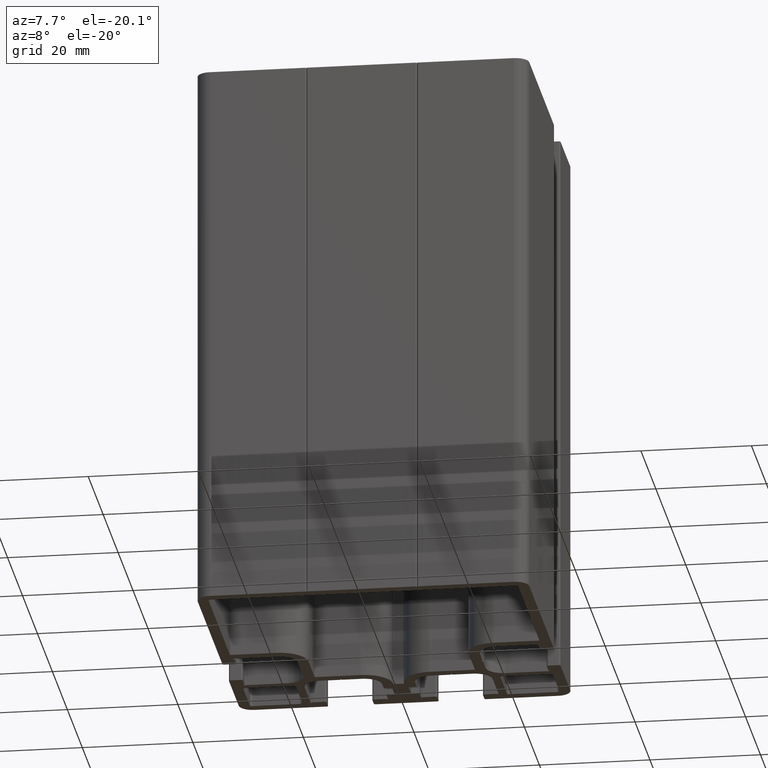
[diagram: clean part render]
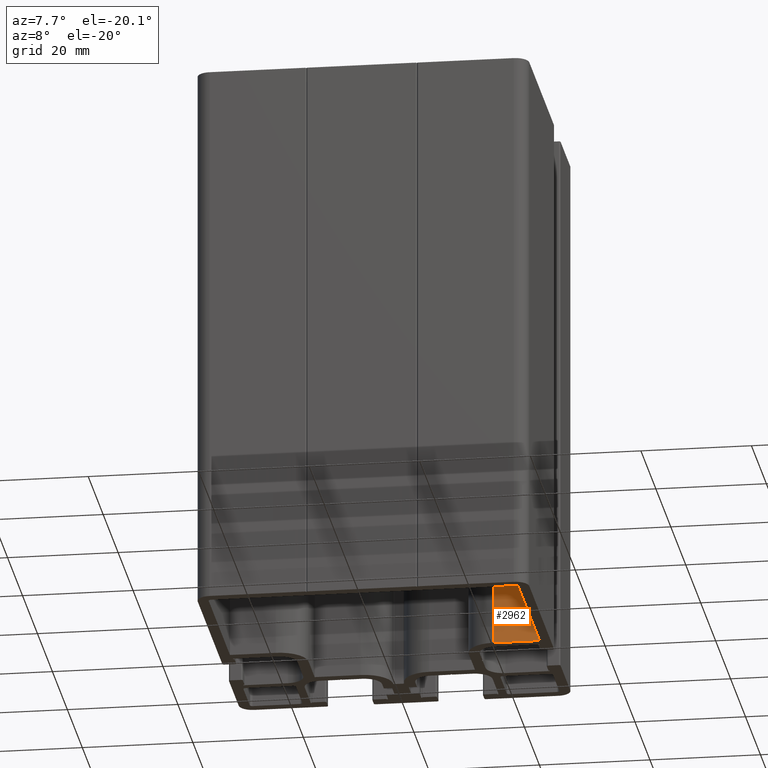
[diagram: same view with one face highlighted and labeled with its STEP entity id]
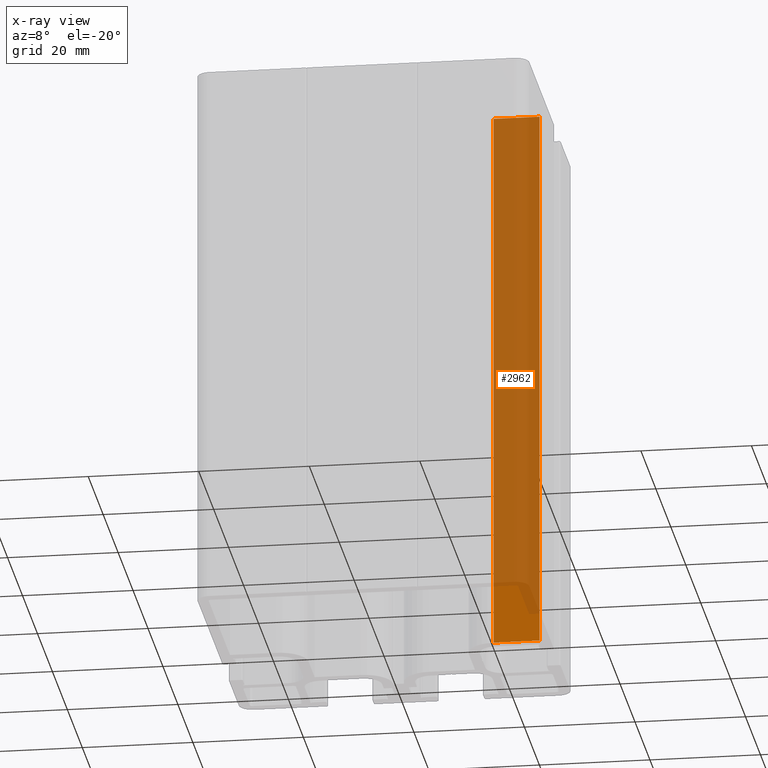
[diagram: x-ray of the same camera — body ghosted, the highlighted face saturated]
A machine part, auxiliary view. The second image highlights one B-rep face of the part: STEP entity #2962.
The next image is the same camera in x-ray: the body ghosted, the highlighted face saturated — about 91% of this face is hidden behind the body in this view.
In plain terms, the highlighted planar face has unit normal (0, 1, 0).
Its self-contained STEP definition (entity closure, byte-faithful):
#210=FACE_OUTER_BOUND('',#364,.T.);
#364=EDGE_LOOP('',(#1983,#1984,#1985,#1986));
#534=LINE('',#4325,#870);
#535=LINE('',#4329,#871);
#536=LINE('',#4331,#872);
#537=LINE('',#4332,#873);
#870=VECTOR('',#3436,100.);
#871=VECTOR('',#3441,8.30000000000001);
#872=VECTOR('',#3442,100.);
#873=VECTOR('',#3443,8.30000000000001);
#1205=VERTEX_POINT('',#4322);
#1206=VERTEX_POINT('',#4324);
#1207=VERTEX_POINT('',#4328);
#1208=VERTEX_POINT('',#4330);
#1517=EDGE_CURVE('',#1205,#1206,#534,.T.);
#1519=EDGE_CURVE('',#1207,#1205,#535,.T.);
#1520=EDGE_CURVE('',#1207,#1208,#536,.T.);
#1521=EDGE_CURVE('',#1206,#1208,#537,.T.);
#1983=ORIENTED_EDGE('',*,*,#1519,.F.);
#1984=ORIENTED_EDGE('',*,*,#1520,.T.);
#1985=ORIENTED_EDGE('',*,*,#1521,.F.);
#1986=ORIENTED_EDGE('',*,*,#1517,.F.);
#2864=PLANE('',#3126);
#2962=ADVANCED_FACE('',(#210),#2864,.F.);
#3126=AXIS2_PLACEMENT_3D('',#4327,#3439,#3440);
#3436=DIRECTION('',(0.,0.,1.));
#3439=DIRECTION('center_axis',(0.,1.,0.));
#3440=DIRECTION('ref_axis',(-1.,0.,0.));
#3441=DIRECTION('',(-1.,0.,0.));
#3442=DIRECTION('',(0.,0.,1.));
#3443=DIRECTION('',(1.,0.,0.));
#4322=CARTESIAN_POINT('',(19.7,1.,0.));
#4324=CARTESIAN_POINT('',(19.7,0.999999999999999,100.));
#4325=CARTESIAN_POINT('',(19.7,1.,0.));
#4327=CARTESIAN_POINT('Origin',(28.,1.,0.));
#4328=CARTESIAN_POINT('',(28.,1.,0.));
#4329=CARTESIAN_POINT('',(13.9999999999997,1.,0.));
#4330=CARTESIAN_POINT('',(28.,0.999999999999999,100.));
#4331=CARTESIAN_POINT('',(28.,1.,0.));
#4332=CARTESIAN_POINT('',(13.9999999999997,1.,100.));